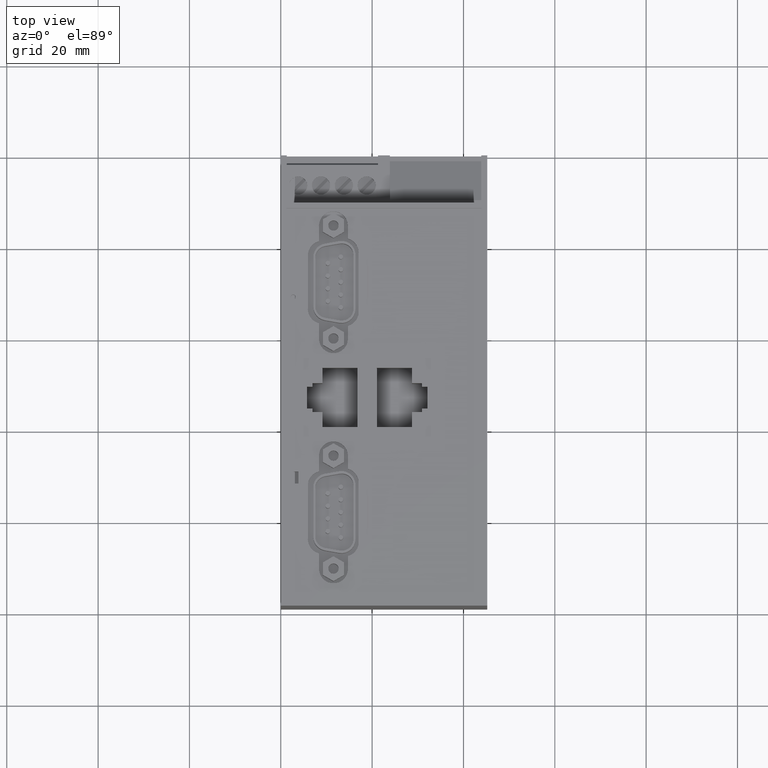
[diagram: clean part render]
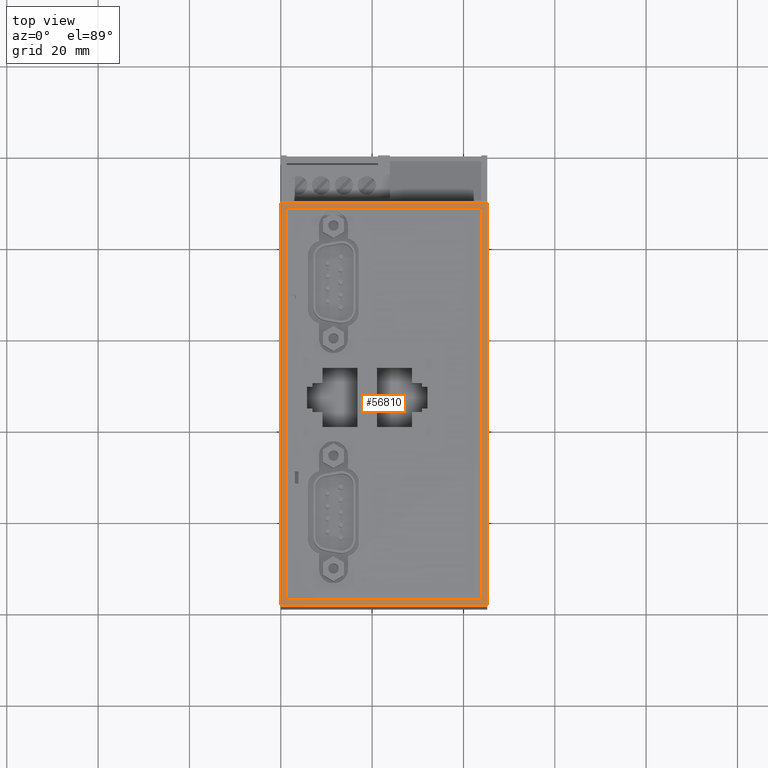
[diagram: same view with one face highlighted and labeled with its STEP entity id]
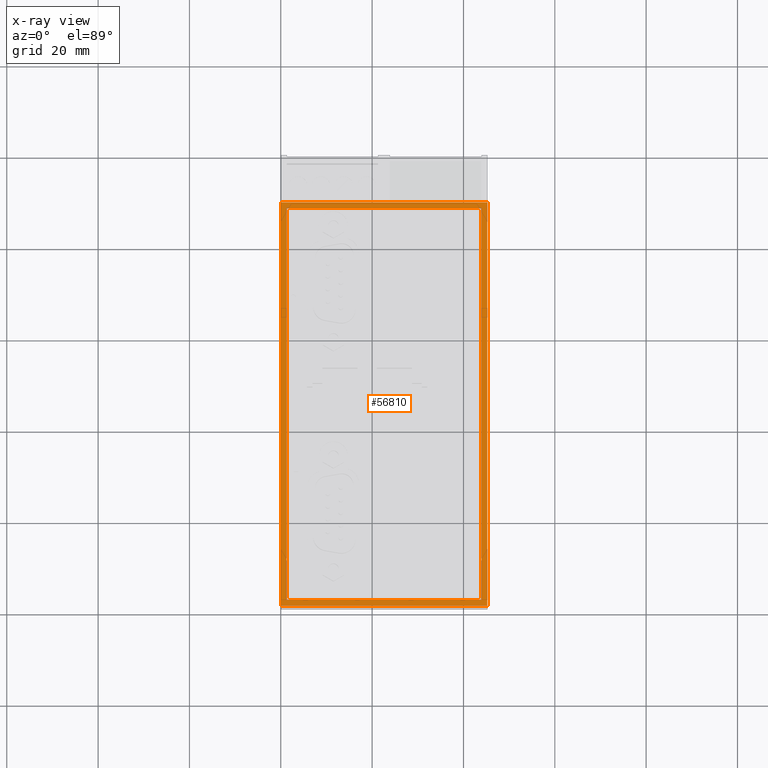
[diagram: x-ray of the same camera — body ghosted, the highlighted face saturated]
A machine part, top view. The second image highlights one B-rep face of the part: STEP entity #56810.
The next image is the same camera in x-ray: the body ghosted, the highlighted face saturated — about 0% of this face is hidden behind the body in this view.
In plain terms, the highlighted planar face has unit normal (0, -0, -1).
Its self-contained STEP definition (entity closure, byte-faithful):
#1160=CARTESIAN_POINT('',(21.3000000000241,106.999999999943,-11.3));
#1170=VERTEX_POINT('',#1160);
#1200=CARTESIAN_POINT('',(24.,106.999999999941,-11.3));
#1210=DIRECTION('',(-1.,7.38964445188328E-13,0.));
#1220=VECTOR('',#1210,1.);
#1230=LINE('',#1200,#1220);
#1240=CARTESIAN_POINT('',(-66.9999999999093,107.000000000009,-11.3));
#1250=VERTEX_POINT('',#1240);
#1260=EDGE_CURVE('',#1170,#1250,#1230,.T.);
#56040=CARTESIAN_POINT('',(21.2999999999832,106.999999999943,33.9));
#56050=VERTEX_POINT('',#56040);
#56080=CARTESIAN_POINT('',(21.3000000000241,106.999999999943,-11.3));
#56090=DIRECTION('',(-1.81046150293795E-12,2.21416216699985E-24,1.));
#56100=VECTOR('',#56090,1.);
#56110=LINE('',#56080,#56100);
#56120=EDGE_CURVE('',#1170,#56050,#56110,.T.);
#56240=CARTESIAN_POINT('',(-57.9836632390448,107.000000000002,
-1.82808689776043));
#56250=DIRECTION('',(-7.38964445188328E-13,-1.,8.76330016597908E-25));
#56260=DIRECTION('',(1.,-7.38964445188328E-13,-0.));
#56270=AXIS2_PLACEMENT_3D('',#56240,#56250,#56260);
#56280=PLANE('',#56270);
#56290=CARTESIAN_POINT('',(24.,106.999999999941,32.6499999999959));
#56300=DIRECTION('',(-1.,7.38964445188328E-13,0.));
#56310=VECTOR('',#56300,1.);
#56320=LINE('',#56290,#56310);
#56330=CARTESIAN_POINT('',(20.0499999999854,106.999999999944,
32.6499999999959));
#56340=VERTEX_POINT('',#56330);
#56350=CARTESIAN_POINT('',(-65.7499999999964,107.000000000008,
32.6499999999959));
#56360=VERTEX_POINT('',#56350);
#56370=EDGE_CURVE('',#56340,#56360,#56320,.T.);
#56380=ORIENTED_EDGE('',*,*,#56370,.T.);
#56390=CARTESIAN_POINT('',(20.0499999999854,106.999999999944,-11.3));
#56400=DIRECTION('',(6.4780758989847E-37,8.76330016597908E-25,1.));
#56410=VECTOR('',#56400,1.);
#56420=LINE('',#56390,#56410);
#56430=CARTESIAN_POINT('',(20.0499999999854,106.999999999944,
-10.0499999998488));
#56440=VERTEX_POINT('',#56430);
#56450=EDGE_CURVE('',#56440,#56340,#56420,.T.);
#56460=ORIENTED_EDGE('',*,*,#56450,.T.);
#56470=CARTESIAN_POINT('',(24.,106.999999999941,-10.0499999998488));
#56480=DIRECTION('',(1.,-7.38964445188328E-13,-0.));
#56490=VECTOR('',#56480,1.);
#56500=LINE('',#56470,#56490);
#56510=CARTESIAN_POINT('',(-65.7499999999964,107.000000000008,
-10.0499999998488));
#56520=VERTEX_POINT('',#56510);
#56530=EDGE_CURVE('',#56520,#56440,#56500,.T.);
#56540=ORIENTED_EDGE('',*,*,#56530,.T.);
#56550=CARTESIAN_POINT('',(-65.7499999999964,107.000000000008,-11.3));
#56560=DIRECTION('',(-6.4780758989847E-37,-8.76330016597908E-25,-1.));
#56570=VECTOR('',#56560,1.);
#56580=LINE('',#56550,#56570);
#56590=EDGE_CURVE('',#56360,#56520,#56580,.T.);
#56600=ORIENTED_EDGE('',*,*,#56590,.T.);
#56610=EDGE_LOOP('',(#56600,#56540,#56460,#56380));
#56620=FACE_BOUND('',#56610,.T.);
#56630=ORIENTED_EDGE('',*,*,#1260,.T.);
#56640=ORIENTED_EDGE('',*,*,#56120,.F.);
#56650=CARTESIAN_POINT('',(24.,106.999999999941,33.9));
#56660=DIRECTION('',(-1.,7.38964445188328E-13,0.));
#56670=VECTOR('',#56660,1.);
#56680=LINE('',#56650,#56670);
#56690=CARTESIAN_POINT('',(-66.9999999999093,107.000000000009,33.9));
#56700=VERTEX_POINT('',#56690);
#56710=EDGE_CURVE('',#56050,#56700,#56680,.T.);
#56720=ORIENTED_EDGE('',*,*,#56710,.F.);
#56730=CARTESIAN_POINT('',(-66.9999999999093,107.000000000009,-11.3));
#56740=DIRECTION('',(0.,-8.76330016597908E-25,-1.));
#56750=VECTOR('',#56740,1.);
#56760=LINE('',#56730,#56750);
#56770=EDGE_CURVE('',#56700,#1250,#56760,.T.);
#56780=ORIENTED_EDGE('',*,*,#56770,.F.);
#56790=EDGE_LOOP('',(#56780,#56720,#56640,#56630));
#56800=FACE_OUTER_BOUND('',#56790,.T.);
#56810=ADVANCED_FACE('',(#56620,#56800),#56280,.F.);